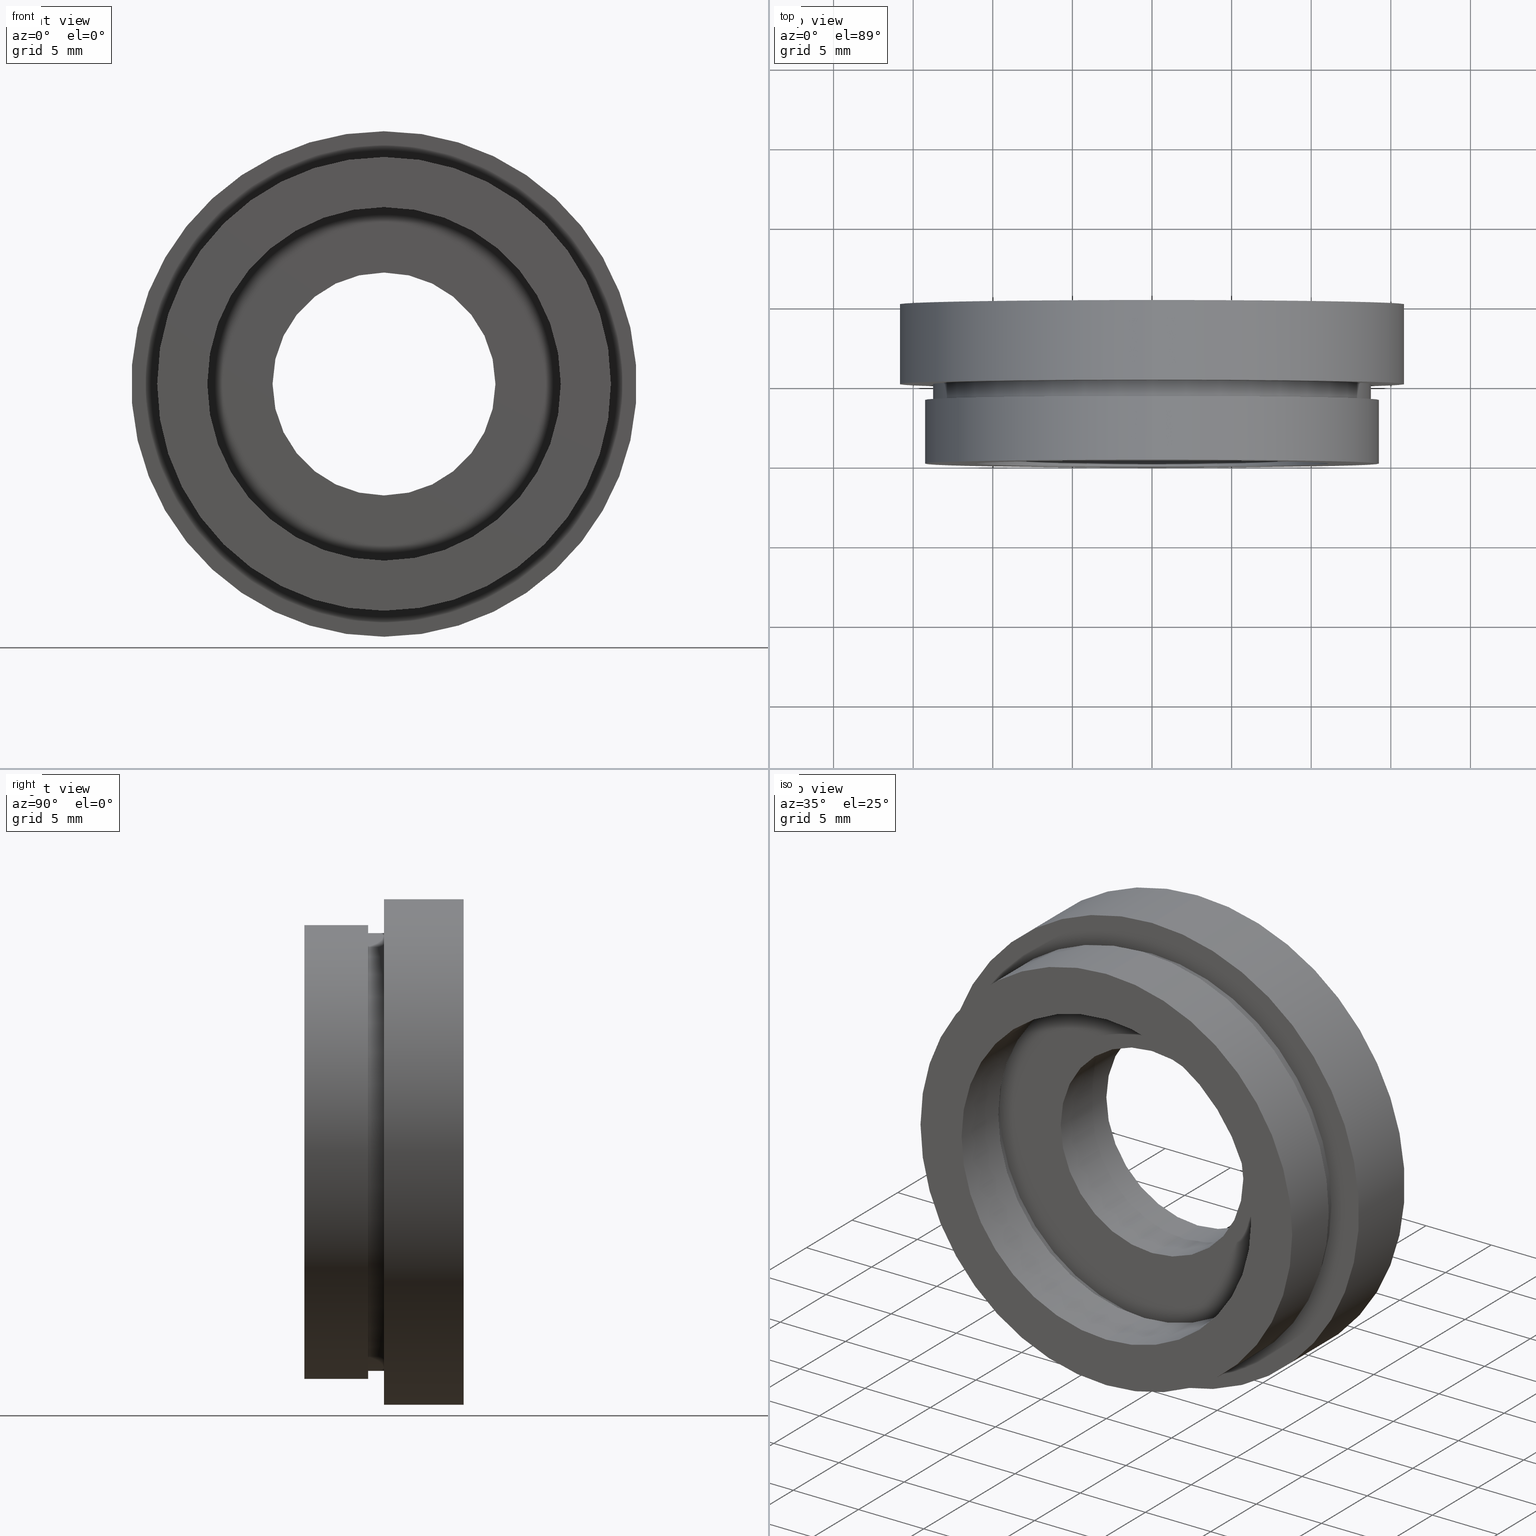
[diagram: canonical four-view strip — front | top / right | iso, engineering-drawing reading convention]
A machine part, canonical four-view strip (front | top / right | iso — engineering-drawing reading convention). The complete STEP part file that produces these views, byte-faithful:
ISO-10303-21;
HEADER;
FILE_DESCRIPTION (( 'STEP AP214' ),
    '1' );
FILE_NAME ('504066.STEP',
    '2019-09-30T03:16:04',
    ( 'user' ),
    ( '΢���й�' ),
    'SwSTEP 2.0',
    'SolidWorks 2016',
    '' );
FILE_SCHEMA (( 'AUTOMOTIVE_DESIGN' ));
ENDSEC;

DATA;
#1 =( NAMED_UNIT ( * ) PLANE_ANGLE_UNIT ( ) SI_UNIT ( $, .RADIAN. ) );
#2 = DIRECTION ( 'NONE',  ( 0.0000000000000000000, 0.0000000000000000000, 1.000000000000000000 ) ) ;
#3 = EDGE_CURVE ( 'NONE', #66, #242, #73, .T. ) ;
#4 = FILL_AREA_STYLE ('',( #424 ) ) ;
#5 = FACE_BOUND ( 'NONE', #399, .T. ) ;
#6 =( NAMED_UNIT ( * ) SI_UNIT ( $, .STERADIAN. ) SOLID_ANGLE_UNIT ( ) );
#7 = CIRCLE ( 'NONE', #325, 11.70000000000000100 ) ;
#8 = ORIENTED_EDGE ( 'NONE', *, *, #110, .F. ) ;
#9 = DIRECTION ( 'NONE',  ( 0.0000000000000000000, -0.0000000000000000000, -1.000000000000000000 ) ) ;
#10 = PLANE ( 'NONE',  #161 ) ;
#11 = LINE ( 'NONE', #107, #154 ) ;
#12 = EDGE_LOOP ( 'NONE', ( #61, #411, #124, #458 ) ) ;
#13 = FACE_OUTER_BOUND ( 'NONE', #374, .T. ) ;
#14 = SURFACE_STYLE_USAGE ( .BOTH. , #199 ) ;
#15 = SURFACE_STYLE_USAGE ( .BOTH. , #536 ) ;
#16 = EDGE_LOOP ( 'NONE', ( #588, #386 ) ) ;
#17 = CARTESIAN_POINT ( 'NONE',  ( 0.0000000000000000000, 0.0000000000000000000, 0.0000000000000000000 ) ) ;
#18 = VERTEX_POINT ( 'NONE', #535 ) ;
#19 = AXIS2_PLACEMENT_3D ( 'NONE', #57, #343, #481 ) ;
#20 = ORIENTED_EDGE ( 'NONE', *, *, #79, .T. ) ;
#21 = FACE_OUTER_BOUND ( 'NONE', #559, .T. ) ;
#22 = CARTESIAN_POINT ( 'NONE',  ( 1.432836755002403300E-015, 17.41929831819392000, -11.70000000000000100 ) ) ;
#23 = FACE_OUTER_BOUND ( 'NONE', #201, .T. ) ;
#24 =( NAMED_UNIT ( * ) PLANE_ANGLE_UNIT ( ) SI_UNIT ( $, .RADIAN. ) );
#25 = AXIS2_PLACEMENT_3D ( 'NONE', #330, #486, #313 ) ;
#26 = SURFACE_STYLE_USAGE ( .BOTH. , #377 ) ;
#27 = DIRECTION ( 'NONE',  ( 0.0000000000000000000, 0.0000000000000000000, 1.000000000000000000 ) ) ;
#28 = DIRECTION ( 'NONE',  ( -0.0000000000000000000, 1.000000000000000000, -0.0000000000000000000 ) ) ;
#29 = ADVANCED_FACE ( 'NONE', ( #23 ), #114, .F. ) ;
#30 = VERTEX_POINT ( 'NONE', #437 ) ;
#31 = FILL_AREA_STYLE_COLOUR ( '', #245 ) ;
#32 =( GEOMETRIC_REPRESENTATION_CONTEXT ( 3 ) GLOBAL_UNCERTAINTY_ASSIGNED_CONTEXT ( ( #75 ) ) GLOBAL_UNIT_ASSIGNED_CONTEXT ( ( #77, #205, #476 ) ) REPRESENTATION_CONTEXT ( 'NONE', 'WORKASPACE' ) );
#33 = CIRCLE ( 'NONE', #337, 11.10000000000000100 ) ;
#34 =( NAMED_UNIT ( * ) SI_UNIT ( $, .STERADIAN. ) SOLID_ANGLE_UNIT ( ) );
#35 = ADVANCED_FACE ( 'NONE', ( #5, #21 ), #119, .F. ) ;
#36 = PRESENTATION_LAYER_ASSIGNMENT (  '', '', ( #121 ) ) ;
#37 = CARTESIAN_POINT ( 'NONE',  ( 11.70000000000000100, 4.999999999999999100, 0.0000000000000000000 ) ) ;
#38 = CARTESIAN_POINT ( 'NONE',  ( 11.10000000000000100, 0.0000000000000000000, 0.0000000000000000000 ) ) ;
#39 = EDGE_CURVE ( 'NONE', #30, #189, #7, .T. ) ;
#40 = DIRECTION ( 'NONE',  ( 0.0000000000000000000, 0.0000000000000000000, 1.000000000000000000 ) ) ;
#41 = DIRECTION ( 'NONE',  ( -0.0000000000000000000, 1.000000000000000000, 0.0000000000000000000 ) ) ;
#42 = CLOSED_SHELL ( 'NONE', ( #171, #29, #601, #554, #176, #495, #87, #223, #35, #389, #132, #85, #344, #449, #222, #267, #304, #259 ) ) ;
#43 = ORIENTED_EDGE ( 'NONE', *, *, #425, .T. ) ;
#44 = EDGE_CURVE ( 'NONE', #581, #563, #112, .T. ) ;
#45 = FACE_OUTER_BOUND ( 'NONE', #569, .T. ) ;
#46 = SURFACE_SIDE_STYLE ('',( #539 ) ) ;
#47 = SURFACE_STYLE_USAGE ( .BOTH. , #146 ) ;
#48 = EDGE_LOOP ( 'NONE', ( #125, #623, #43, #371 ) ) ;
#49 = LINE ( 'NONE', #22, #111 ) ;
#50 = AXIS2_PLACEMENT_3D ( 'NONE', #460, #519, #524 ) ;
#51 = ADVANCED_BREP_SHAPE_REPRESENTATION ( '504066', ( #95, #144 ), #76 ) ;
#52 = COLOUR_RGB ( '',1.000000000000000000, 1.000000000000000000, 1.000000000000000000 ) ;
#53 = FILL_AREA_STYLE_COLOUR ( '', #612 ) ;
#54 = FACE_BOUND ( 'NONE', #16, .T. ) ;
#55 = DIRECTION ( 'NONE',  ( -0.0000000000000000000, 1.000000000000000000, -0.0000000000000000000 ) ) ;
#56 = DIRECTION ( 'NONE',  ( 0.0000000000000000000, 0.0000000000000000000, 1.000000000000000000 ) ) ;
#57 = CARTESIAN_POINT ( 'NONE',  ( 0.0000000000000000000, 17.41929831819392000, 0.0000000000000000000 ) ) ;
#58 =( NAMED_UNIT ( * ) PLANE_ANGLE_UNIT ( ) SI_UNIT ( $, .RADIAN. ) );
#59 = ORIENTED_EDGE ( 'NONE', *, *, #438, .F. ) ;
#60 = ORIENTED_EDGE ( 'NONE', *, *, #361, .T. ) ;
#61 = ORIENTED_EDGE ( 'NONE', *, *, #512, .F. ) ;
#62 = LINE ( 'NONE', #354, #391 ) ;
#63 = AXIS2_PLACEMENT_3D ( 'NONE', #227, #145, #408 ) ;
#64 =( NAMED_UNIT ( * ) SI_UNIT ( $, .STERADIAN. ) SOLID_ANGLE_UNIT ( ) );
#65 = DIRECTION ( 'NONE',  ( -0.0000000000000000000, 1.000000000000000000, -0.0000000000000000000 ) ) ;
#66 = VERTEX_POINT ( 'NONE', #556 ) ;
#67 = LINE ( 'NONE', #529, #402 ) ;
#68 = CARTESIAN_POINT ( 'NONE',  ( 1.683889348827610700E-015, 4.000000000000000000, -13.75000000000000000 ) ) ;
#69 = VERTEX_POINT ( 'NONE', #185 ) ;
#70 = DIRECTION ( 'NONE',  ( 0.0000000000000000000, 0.0000000000000000000, 1.000000000000000000 ) ) ;
#71 = VERTEX_POINT ( 'NONE', #456 ) ;
#72 = FACE_OUTER_BOUND ( 'NONE', #420, .T. ) ;
#73 = CIRCLE ( 'NONE', #463, 15.87500000000000000 ) ;
#74 = CARTESIAN_POINT ( 'NONE',  ( 0.0000000000000000000, 10.00000000000000000, 0.0000000000000000000 ) ) ;
#75 = UNCERTAINTY_MEASURE_WITH_UNIT (LENGTH_MEASURE( 1.000000000000000100E-005 ), #77, 'distance_accuracy_value', 'NONE');
#76 =( GEOMETRIC_REPRESENTATION_CONTEXT ( 3 ) GLOBAL_UNCERTAINTY_ASSIGNED_CONTEXT ( ( #347 ) ) GLOBAL_UNIT_ASSIGNED_CONTEXT ( ( #175, #385, #552 ) ) REPRESENTATION_CONTEXT ( 'NONE', 'WORKASPACE' ) );
#77 =( LENGTH_UNIT ( ) NAMED_UNIT ( * ) SI_UNIT ( .MILLI., .METRE. ) );
#78 = EDGE_CURVE ( 'NONE', #196, #332, #353, .T. ) ;
#79 = EDGE_CURVE ( 'NONE', #611, #620, #485, .T. ) ;
#80 = DIRECTION ( 'NONE',  ( 0.0000000000000000000, 0.0000000000000000000, 1.000000000000000000 ) ) ;
#81 = ORIENTED_EDGE ( 'NONE', *, *, #3, .T. ) ;
#82 =( NAMED_UNIT ( * ) PLANE_ANGLE_UNIT ( ) SI_UNIT ( $, .RADIAN. ) );
#83 = DIRECTION ( 'NONE',  ( -0.0000000000000000000, 1.000000000000000000, 0.0000000000000000000 ) ) ;
#84 = CIRCLE ( 'NONE', #307, 15.87500000000000000 ) ;
#85 = ADVANCED_FACE ( 'NONE', ( #624 ), #504, .T. ) ;
#86 = CARTESIAN_POINT ( 'NONE',  ( 7.000000000000001800, 10.00000000000000000, 0.0000000000000000000 ) ) ;
#87 = ADVANCED_FACE ( 'NONE', ( #13, #54 ), #350, .F. ) ;
#88 = UNCERTAINTY_MEASURE_WITH_UNIT (LENGTH_MEASURE( 1.000000000000000100E-005 ), #410, 'distance_accuracy_value', 'NONE');
#89 = VERTEX_POINT ( 'NONE', #172 ) ;
#90 = FACE_OUTER_BOUND ( 'NONE', #479, .T. ) ;
#91 = CARTESIAN_POINT ( 'NONE',  ( 0.0000000000000000000, 4.000000000000000000, 0.0000000000000000000 ) ) ;
#92 = DIRECTION ( 'NONE',  ( -0.0000000000000000000, 1.000000000000000000, -0.0000000000000000000 ) ) ;
#93 = CARTESIAN_POINT ( 'NONE',  ( 0.0000000000000000000, 17.41929831819392000, 0.0000000000000000000 ) ) ;
#94 = DIRECTION ( 'NONE',  ( -0.0000000000000000000, 1.000000000000000000, -0.0000000000000000000 ) ) ;
#95 = MANIFOLD_SOLID_BREP ( '��ת1', #42 ) ;
#96 = CARTESIAN_POINT ( 'NONE',  ( 0.0000000000000000000, 17.41929831819392000, 0.0000000000000000000 ) ) ;
#97 = ORIENTED_EDGE ( 'NONE', *, *, #361, .F. ) ;
#98 = DIRECTION ( 'NONE',  ( 0.0000000000000000000, 0.0000000000000000000, 1.000000000000000000 ) ) ;
#99 = CYLINDRICAL_SURFACE ( 'NONE', #500, 7.000000000000001800 ) ;
#100 = DIRECTION ( 'NONE',  ( -0.0000000000000000000, 1.000000000000000000, -0.0000000000000000000 ) ) ;
#101 = DIRECTION ( 'NONE',  ( 0.0000000000000000000, 0.0000000000000000000, 1.000000000000000000 ) ) ;
#102 = DIRECTION ( 'NONE',  ( -0.0000000000000000000, 1.000000000000000000, -0.0000000000000000000 ) ) ;
#103 = ORIENTED_EDGE ( 'NONE', *, *, #520, .F. ) ;
#104 = DIRECTION ( 'NONE',  ( 0.0000000000000000000, 0.0000000000000000000, 1.000000000000000000 ) ) ;
#105 = ORIENTED_EDGE ( 'NONE', *, *, #78, .F. ) ;
#106 = EDGE_LOOP ( 'NONE', ( #254, #493, #255, #308 ) ) ;
#107 = CARTESIAN_POINT ( 'NONE',  ( 1.683889348827610700E-015, 17.41929831819392000, -13.75000000000000000 ) ) ;
#108 =( GEOMETRIC_REPRESENTATION_CONTEXT ( 3 ) GLOBAL_UNCERTAINTY_ASSIGNED_CONTEXT ( ( #179 ) ) GLOBAL_UNIT_ASSIGNED_CONTEXT ( ( #517, #58, #34 ) ) REPRESENTATION_CONTEXT ( 'NONE', 'WORKASPACE' ) );
#109 = DIRECTION ( 'NONE',  ( 0.0000000000000000000, 0.0000000000000000000, 1.000000000000000000 ) ) ;
#110 = EDGE_CURVE ( 'NONE', #189, #30, #142, .T. ) ;
#111 = VECTOR ( 'NONE', #446, 1000.000000000000000 ) ;
#112 = CIRCLE ( 'NONE', #63, 14.25000000000000400 ) ;
#113 = CIRCLE ( 'NONE', #502, 7.000000000000001800 ) ;
#114 = CYLINDRICAL_SURFACE ( 'NONE', #610, 11.70000000000000100 ) ;
#115 = PLANE ( 'NONE',  #487 ) ;
#116 = STYLED_ITEM ( 'NONE', ( #474 ), #449 ) ;
#117 = APPLICATION_CONTEXT ( 'automotive_design' ) ;
#118 = ORIENTED_EDGE ( 'NONE', *, *, #425, .F. ) ;
#119 = PLANE ( 'NONE',  #295 ) ;
#120 = CYLINDRICAL_SURFACE ( 'NONE', #198, 13.75000000000000000 ) ;
#121 = STYLED_ITEM ( 'NONE', ( #333 ), #171 ) ;
#122 = PRODUCT ( '504066', '504066', '', ( #156 ) ) ;
#123 = DIRECTION ( 'NONE',  ( -0.0000000000000000000, 1.000000000000000000, -0.0000000000000000000 ) ) ;
#124 = ORIENTED_EDGE ( 'NONE', *, *, #532, .T. ) ;
#125 = ORIENTED_EDGE ( 'NONE', *, *, #249, .F. ) ;
#126 = SURFACE_STYLE_FILL_AREA ( #423 ) ;
#127 = LINE ( 'NONE', #596, #403 ) ;
#128 = EDGE_CURVE ( 'NONE', #469, #360, #33, .T. ) ;
#129 =( NAMED_UNIT ( * ) SI_UNIT ( $, .STERADIAN. ) SOLID_ANGLE_UNIT ( ) );
#130 = ORIENTED_EDGE ( 'NONE', *, *, #395, .T. ) ;
#131 = DIRECTION ( 'NONE',  ( 0.0000000000000000000, 0.0000000000000000000, 1.000000000000000000 ) ) ;
#132 = ADVANCED_FACE ( 'NONE', ( #303, #352 ), #609, .F. ) ;
#133 = EDGE_LOOP ( 'NONE', ( #483, #186 ) ) ;
#134 = CARTESIAN_POINT ( 'NONE',  ( 1.745121688784978600E-015, 0.0000000000000000000, -14.25000000000000400 ) ) ;
#135 = VERTEX_POINT ( 'NONE', #268 ) ;
#136 = FACE_BOUND ( 'NONE', #211, .T. ) ;
#137 =( NAMED_UNIT ( * ) SI_UNIT ( $, .STERADIAN. ) SOLID_ANGLE_UNIT ( ) );
#138 = AXIS2_PLACEMENT_3D ( 'NONE', #93, #404, #501 ) ;
#139 = CARTESIAN_POINT ( 'NONE',  ( 0.0000000000000000000, 4.000000000000000000, 14.25000000000000400 ) ) ;
#140 = CARTESIAN_POINT ( 'NONE',  ( 0.0000000000000000000, 17.41929831819392000, 0.0000000000000000000 ) ) ;
#141 = AXIS2_PLACEMENT_3D ( 'NONE', #432, #407, #98 ) ;
#142 = CIRCLE ( 'NONE', #401, 11.70000000000000100 ) ;
#143 =( NAMED_UNIT ( * ) PLANE_ANGLE_UNIT ( ) SI_UNIT ( $, .RADIAN. ) );
#144 = AXIS2_PLACEMENT_3D ( 'NONE', #17, #101, #174 ) ;
#145 = DIRECTION ( 'NONE',  ( -0.0000000000000000000, 1.000000000000000000, -0.0000000000000000000 ) ) ;
#146 = SURFACE_SIDE_STYLE ('',( #340 ) ) ;
#147 = CARTESIAN_POINT ( 'NONE',  ( 0.0000000000000000000, 5.000000000000000900, 0.0000000000000000000 ) ) ;
#148 = MECHANICAL_DESIGN_GEOMETRIC_PRESENTATION_REPRESENTATION (  '', ( #299 ), #480 ) ;
#149 = ORIENTED_EDGE ( 'NONE', *, *, #203, .F. ) ;
#150 = PRODUCT_DEFINITION_CONTEXT ( 'detailed design', #527, 'design' ) ;
#151 = DIRECTION ( 'NONE',  ( 0.0000000000000000000, 0.0000000000000000000, 1.000000000000000000 ) ) ;
#152 = FACE_OUTER_BOUND ( 'NONE', #133, .T. ) ;
#153 = ORIENTED_EDGE ( 'NONE', *, *, #258, .T. ) ;
#154 = VECTOR ( 'NONE', #94, 1000.000000000000000 ) ;
#155 = ORIENTED_EDGE ( 'NONE', *, *, #490, .T. ) ;
#156 = PRODUCT_CONTEXT ( 'NONE', #117, 'mechanical' ) ;
#157 = ORIENTED_EDGE ( 'NONE', *, *, #543, .F. ) ;
#158 = DIRECTION ( 'NONE',  ( 0.0000000000000000000, -0.0000000000000000000, -1.000000000000000000 ) ) ;
#159 = EDGE_CURVE ( 'NONE', #469, #491, #452, .T. ) ;
#160 = PRESENTATION_STYLE_ASSIGNMENT (( #15 ) ) ;
#161 = AXIS2_PLACEMENT_3D ( 'NONE', #293, #202, #158 ) ;
#162 = AXIS2_PLACEMENT_3D ( 'NONE', #96, #615, #232 ) ;
#163 =( GEOMETRIC_REPRESENTATION_CONTEXT ( 3 ) GLOBAL_UNCERTAINTY_ASSIGNED_CONTEXT ( ( #506 ) ) GLOBAL_UNIT_ASSIGNED_CONTEXT ( ( #215, #331, #528 ) ) REPRESENTATION_CONTEXT ( 'NONE', 'WORKASPACE' ) );
#164 = SURFACE_STYLE_FILL_AREA ( #579 ) ;
#165 = PRODUCT_DEFINITION ( 'δ֪', '', #577, #150 ) ;
#166 = CARTESIAN_POINT ( 'NONE',  ( 0.0000000000000000000, 10.00000000000000000, 0.0000000000000000000 ) ) ;
#167 = EDGE_LOOP ( 'NONE', ( #177, #558, #426, #421 ) ) ;
#168 = LINE ( 'NONE', #339, #560 ) ;
#169 = VECTOR ( 'NONE', #382, 1000.000000000000000 ) ;
#170 = FACE_OUTER_BOUND ( 'NONE', #106, .T. ) ;
#171 = ADVANCED_FACE ( 'NONE', ( #45 ), #515, .F. ) ;
#172 = CARTESIAN_POINT ( 'NONE',  ( 0.0000000000000000000, 5.000000000000000900, 15.87500000000000000 ) ) ;
#173 = CARTESIAN_POINT ( 'NONE',  ( 0.0000000000000000000, 4.000000000000000000, 0.0000000000000000000 ) ) ;
#174 = DIRECTION ( 'NONE',  ( 1.000000000000000000, 0.0000000000000000000, 0.0000000000000000000 ) ) ;
#175 =( LENGTH_UNIT ( ) NAMED_UNIT ( * ) SI_UNIT ( .MILLI., .METRE. ) );
#176 = ADVANCED_FACE ( 'NONE', ( #170 ), #120, .T. ) ;
#177 = ORIENTED_EDGE ( 'NONE', *, *, #239, .T. ) ;
#178 = ORIENTED_EDGE ( 'NONE', *, *, #564, .T. ) ;
#179 = UNCERTAINTY_MEASURE_WITH_UNIT (LENGTH_MEASURE( 1.000000000000000100E-005 ), #517, 'distance_accuracy_value', 'NONE');
#180 = CARTESIAN_POINT ( 'NONE',  ( 1.432836755002403300E-015, 5.000000000000000900, -11.70000000000000100 ) ) ;
#181 = FACE_OUTER_BOUND ( 'NONE', #187, .T. ) ;
#182 = SURFACE_STYLE_FILL_AREA ( #200 ) ;
#183 = APPLICATION_PROTOCOL_DEFINITION ( 'draft international standard', 'automotive_design', 1998, #527 ) ;
#184 = DIRECTION ( 'NONE',  ( 0.0000000000000000000, 0.0000000000000000000, 1.000000000000000000 ) ) ;
#185 = CARTESIAN_POINT ( 'NONE',  ( 0.0000000000000000000, 5.000000000000000900, 11.70000000000000100 ) ) ;
#186 = ORIENTED_EDGE ( 'NONE', *, *, #417, .F. ) ;
#187 = EDGE_LOOP ( 'NONE', ( #478, #246, #372, #60 ) ) ;
#188 = ORIENTED_EDGE ( 'NONE', *, *, #417, .T. ) ;
#189 = VERTEX_POINT ( 'NONE', #261 ) ;
#190 =( LENGTH_UNIT ( ) NAMED_UNIT ( * ) SI_UNIT ( .MILLI., .METRE. ) );
#191 = DIRECTION ( 'NONE',  ( -0.0000000000000000000, 1.000000000000000000, -0.0000000000000000000 ) ) ;
#192 = DIRECTION ( 'NONE',  ( 0.0000000000000000000, 0.0000000000000000000, 1.000000000000000000 ) ) ;
#193 = CARTESIAN_POINT ( 'NONE',  ( 0.0000000000000000000, 17.41929831819392000, 0.0000000000000000000 ) ) ;
#194 = DIRECTION ( 'NONE',  ( -0.0000000000000000000, 1.000000000000000000, -0.0000000000000000000 ) ) ;
#195 = EDGE_LOOP ( 'NONE', ( #59, #301 ) ) ;
#196 = VERTEX_POINT ( 'NONE', #383 ) ;
#197 = ORIENTED_EDGE ( 'NONE', *, *, #520, .T. ) ;
#198 = AXIS2_PLACEMENT_3D ( 'NONE', #363, #221, #442 ) ;
#199 = SURFACE_SIDE_STYLE ('',( #164 ) ) ;
#200 = FILL_AREA_STYLE ('',( #53 ) ) ;
#201 = EDGE_LOOP ( 'NONE', ( #322, #455, #188, #103 ) ) ;
#202 = DIRECTION ( 'NONE',  ( 0.0000000000000000000, -1.000000000000000000, 0.0000000000000000000 ) ) ;
#203 = EDGE_CURVE ( 'NONE', #332, #468, #11, .T. ) ;
#204 = CIRCLE ( 'NONE', #270, 11.70000000000000100 ) ;
#205 =( NAMED_UNIT ( * ) PLANE_ANGLE_UNIT ( ) SI_UNIT ( $, .RADIAN. ) );
#206 =( NAMED_UNIT ( * ) PLANE_ANGLE_UNIT ( ) SI_UNIT ( $, .RADIAN. ) );
#207 = MECHANICAL_DESIGN_GEOMETRIC_PRESENTATION_REPRESENTATION (  '', ( #116 ), #436 ) ;
#208 = DIRECTION ( 'NONE',  ( 0.0000000000000000000, 0.0000000000000000000, 1.000000000000000000 ) ) ;
#209 = FILL_AREA_STYLE ('',( #214 ) ) ;
#210 = DIRECTION ( 'NONE',  ( -0.0000000000000000000, 1.000000000000000000, -0.0000000000000000000 ) ) ;
#211 = EDGE_LOOP ( 'NONE', ( #265, #262 ) ) ;
#212 = AXIS2_PLACEMENT_3D ( 'NONE', #147, #92, #413 ) ;
#213 = APPLICATION_PROTOCOL_DEFINITION ( 'draft international standard', 'automotive_design', 1998, #117 ) ;
#214 = FILL_AREA_STYLE_COLOUR ( '', #470 ) ;
#215 =( LENGTH_UNIT ( ) NAMED_UNIT ( * ) SI_UNIT ( .MILLI., .METRE. ) );
#216 = ORIENTED_EDGE ( 'NONE', *, *, #279, .F. ) ;
#217 = CIRCLE ( 'NONE', #356, 11.10000000000000100 ) ;
#218 = AXIS2_PLACEMENT_3D ( 'NONE', #298, #65, #27 ) ;
#219 = FACE_OUTER_BOUND ( 'NONE', #167, .T. ) ;
#220 = CARTESIAN_POINT ( 'NONE',  ( 0.0000000000000000000, 0.0000000000000000000, 14.25000000000000400 ) ) ;
#221 = DIRECTION ( 'NONE',  ( -0.0000000000000000000, 1.000000000000000000, -0.0000000000000000000 ) ) ;
#222 = ADVANCED_FACE ( 'NONE', ( #152, #496 ), #256, .F. ) ;
#223 = ADVANCED_FACE ( 'NONE', ( #278 ), #422, .T. ) ;
#224 = DIRECTION ( 'NONE',  ( 0.0000000000000000000, 0.0000000000000000000, 1.000000000000000000 ) ) ;
#225 = AXIS2_PLACEMENT_3D ( 'NONE', #277, #306, #618 ) ;
#226 = VERTEX_POINT ( 'NONE', #342 ) ;
#227 = CARTESIAN_POINT ( 'NONE',  ( 0.0000000000000000000, 0.0000000000000000000, 0.0000000000000000000 ) ) ;
#228 = AXIS2_PLACEMENT_3D ( 'NONE', #273, #312, #561 ) ;
#229 = DIRECTION ( 'NONE',  ( 0.0000000000000000000, 0.0000000000000000000, 1.000000000000000000 ) ) ;
#230 = AXIS2_PLACEMENT_3D ( 'NONE', #269, #464, #80 ) ;
#231 = EDGE_CURVE ( 'NONE', #226, #468, #614, .T. ) ;
#232 = DIRECTION ( 'NONE',  ( 0.0000000000000000000, 0.0000000000000000000, 1.000000000000000000 ) ) ;
#233 = ORIENTED_EDGE ( 'NONE', *, *, #128, .F. ) ;
#234 = DIRECTION ( 'NONE',  ( -0.0000000000000000000, 1.000000000000000000, -0.0000000000000000000 ) ) ;
#235 = CYLINDRICAL_SURFACE ( 'NONE', #50, 11.70000000000000100 ) ;
#236 = EDGE_CURVE ( 'NONE', #69, #473, #553, .T. ) ;
#237 = DIRECTION ( 'NONE',  ( -0.0000000000000000000, 1.000000000000000000, -0.0000000000000000000 ) ) ;
#238 = CARTESIAN_POINT ( 'NONE',  ( 0.0000000000000000000, 10.00000000000000000, 0.0000000000000000000 ) ) ;
#239 = EDGE_CURVE ( 'NONE', #563, #581, #540, .T. ) ;
#240 = SURFACE_STYLE_USAGE ( .BOTH. , #621 ) ;
#241 = EDGE_CURVE ( 'NONE', #491, #289, #217, .T. ) ;
#242 = VERTEX_POINT ( 'NONE', #440 ) ;
#243 = VECTOR ( 'NONE', #260, 1000.000000000000000 ) ;
#244 = DIRECTION ( 'NONE',  ( -0.0000000000000000000, 1.000000000000000000, 0.0000000000000000000 ) ) ;
#245 = COLOUR_RGB ( '',1.000000000000000000, 1.000000000000000000, 1.000000000000000000 ) ;
#246 = ORIENTED_EDGE ( 'NONE', *, *, #79, .F. ) ;
#247 = CARTESIAN_POINT ( 'NONE',  ( 0.0000000000000000000, 0.0000000000000000000, 11.10000000000000100 ) ) ;
#248 = FILL_AREA_STYLE_COLOUR ( '', #329 ) ;
#249 = EDGE_CURVE ( 'NONE', #18, #242, #127, .T. ) ;
#250 = ORIENTED_EDGE ( 'NONE', *, *, #231, .T. ) ;
#251 = ORIENTED_EDGE ( 'NONE', *, *, #39, .T. ) ;
#252 = PRESENTATION_STYLE_ASSIGNMENT (( #14 ) ) ;
#253 = CARTESIAN_POINT ( 'NONE',  ( 0.0000000000000000000, 17.41929831819392000, 0.0000000000000000000 ) ) ;
#254 = ORIENTED_EDGE ( 'NONE', *, *, #78, .T. ) ;
#255 = ORIENTED_EDGE ( 'NONE', *, *, #231, .F. ) ;
#256 = PLANE ( 'NONE',  #603 ) ;
#257 = STYLED_ITEM ( 'NONE', ( #160 ), #223 ) ;
#258 = EDGE_CURVE ( 'NONE', #289, #491, #296, .T. ) ;
#259 = ADVANCED_FACE ( 'NONE', ( #72 ), #316, .F. ) ;
#260 = DIRECTION ( 'NONE',  ( -0.0000000000000000000, 1.000000000000000000, -0.0000000000000000000 ) ) ;
#261 = CARTESIAN_POINT ( 'NONE',  ( 0.0000000000000000000, 4.000000000000000000, 11.70000000000000100 ) ) ;
#262 = ORIENTED_EDGE ( 'NONE', *, *, #241, .F. ) ;
#263 = AXIS2_PLACEMENT_3D ( 'NONE', #238, #507, #565 ) ;
#264 = ORIENTED_EDGE ( 'NONE', *, *, #249, .T. ) ;
#265 = ORIENTED_EDGE ( 'NONE', *, *, #258, .F. ) ;
#266 = PRESENTATION_STYLE_ASSIGNMENT (( #240 ) ) ;
#267 = ADVANCED_FACE ( 'NONE', ( #445 ), #235, .F. ) ;
#268 = CARTESIAN_POINT ( 'NONE',  ( 0.0000000000000000000, 10.00000000000000000, 7.000000000000001800 ) ) ;
#269 = CARTESIAN_POINT ( 'NONE',  ( 0.0000000000000000000, 17.41929831819392000, 0.0000000000000000000 ) ) ;
#270 = AXIS2_PLACEMENT_3D ( 'NONE', #362, #369, #358 ) ;
#271 = FACE_OUTER_BOUND ( 'NONE', #418, .T. ) ;
#272 = CARTESIAN_POINT ( 'NONE',  ( 8.572527594031474200E-016, 4.999999999999999100, -7.000000000000001800 ) ) ;
#273 = CARTESIAN_POINT ( 'NONE',  ( 0.0000000000000000000, 4.000000000000000000, 0.0000000000000000000 ) ) ;
#274 = FILL_AREA_STYLE_COLOUR ( '', #287 ) ;
#275 = DIRECTION ( 'NONE',  ( 0.0000000000000000000, -1.000000000000000000, 0.0000000000000000000 ) ) ;
#276 = ORIENTED_EDGE ( 'NONE', *, *, #605, .T. ) ;
#277 = CARTESIAN_POINT ( 'NONE',  ( 0.0000000000000000000, 17.41929831819392000, 0.0000000000000000000 ) ) ;
#278 = FACE_OUTER_BOUND ( 'NONE', #12, .T. ) ;
#279 = EDGE_CURVE ( 'NONE', #611, #135, #348, .T. ) ;
#280 = CARTESIAN_POINT ( 'NONE',  ( 1.359357947053562400E-015, 0.0000000000000000000, -11.10000000000000100 ) ) ;
#281 =( NAMED_UNIT ( * ) SI_UNIT ( $, .STERADIAN. ) SOLID_ANGLE_UNIT ( ) );
#282 =( GEOMETRIC_REPRESENTATION_CONTEXT ( 3 ) GLOBAL_UNCERTAINTY_ASSIGNED_CONTEXT ( ( #88 ) ) GLOBAL_UNIT_ASSIGNED_CONTEXT ( ( #410, #143, #6 ) ) REPRESENTATION_CONTEXT ( 'NONE', 'WORKASPACE' ) );
#283 = CARTESIAN_POINT ( 'NONE',  ( 0.0000000000000000000, 4.000000000000000000, 0.0000000000000000000 ) ) ;
#284 = STYLED_ITEM ( 'NONE', ( #526 ), #95 ) ;
#285 = EDGE_LOOP ( 'NONE', ( #286, #276, #130, #216 ) ) ;
#286 = ORIENTED_EDGE ( 'NONE', *, *, #589, .F. ) ;
#287 = COLOUR_RGB ( '',1.000000000000000000, 1.000000000000000000, 1.000000000000000000 ) ;
#288 = CARTESIAN_POINT ( 'NONE',  ( 1.683889348827610700E-015, 5.000000000000000900, -13.75000000000000000 ) ) ;
#289 = VERTEX_POINT ( 'NONE', #416 ) ;
#290 = ORIENTED_EDGE ( 'NONE', *, *, #592, .T. ) ;
#291 = LINE ( 'NONE', #431, #328 ) ;
#292 = DIRECTION ( 'NONE',  ( -0.0000000000000000000, 1.000000000000000000, -0.0000000000000000000 ) ) ;
#293 = CARTESIAN_POINT ( 'NONE',  ( 11.10000000000000100, 4.000000000000000000, 0.0000000000000000000 ) ) ;
#294 = UNCERTAINTY_MEASURE_WITH_UNIT (LENGTH_MEASURE( 1.000000000000000100E-005 ), #190, 'distance_accuracy_value', 'NONE');
#295 = AXIS2_PLACEMENT_3D ( 'NONE', #444, #275, #9 ) ;
#296 = CIRCLE ( 'NONE', #461, 11.10000000000000100 ) ;
#297 = CARTESIAN_POINT ( 'NONE',  ( 0.0000000000000000000, 0.0000000000000000000, 0.0000000000000000000 ) ) ;
#298 = CARTESIAN_POINT ( 'NONE',  ( 0.0000000000000000000, 10.00000000000000000, 0.0000000000000000000 ) ) ;
#299 = STYLED_ITEM ( 'NONE', ( #435 ), #259 ) ;
#300 = EDGE_LOOP ( 'NONE', ( #97, #434 ) ) ;
#301 = ORIENTED_EDGE ( 'NONE', *, *, #324, .F. ) ;
#302 =( GEOMETRIC_REPRESENTATION_CONTEXT ( 3 ) GLOBAL_UNCERTAINTY_ASSIGNED_CONTEXT ( ( #467 ) ) GLOBAL_UNIT_ASSIGNED_CONTEXT ( ( #521, #82, #137 ) ) REPRESENTATION_CONTEXT ( 'NONE', 'WORKASPACE' ) );
#303 = FACE_OUTER_BOUND ( 'NONE', #195, .T. ) ;
#304 = ADVANCED_FACE ( 'NONE', ( #136, #336 ), #10, .F. ) ;
#305 = DIRECTION ( 'NONE',  ( 0.0000000000000000000, 0.0000000000000000000, 1.000000000000000000 ) ) ;
#306 = DIRECTION ( 'NONE',  ( -0.0000000000000000000, 1.000000000000000000, -0.0000000000000000000 ) ) ;
#307 = AXIS2_PLACEMENT_3D ( 'NONE', #459, #237, #572 ) ;
#308 = ORIENTED_EDGE ( 'NONE', *, *, #490, .F. ) ;
#309 = CIRCLE ( 'NONE', #25, 14.25000000000000400 ) ;
#310 = CARTESIAN_POINT ( 'NONE',  ( 0.0000000000000000000, 4.999999999999999100, 0.0000000000000000000 ) ) ;
#311 = AXIS2_PLACEMENT_3D ( 'NONE', #310, #608, #208 ) ;
#312 = DIRECTION ( 'NONE',  ( -0.0000000000000000000, 1.000000000000000000, -0.0000000000000000000 ) ) ;
#313 = DIRECTION ( 'NONE',  ( 0.0000000000000000000, 0.0000000000000000000, 1.000000000000000000 ) ) ;
#314 = PRESENTATION_STYLE_ASSIGNMENT (( #47 ) ) ;
#315 = CIRCLE ( 'NONE', #364, 15.87500000000000000 ) ;
#316 = CYLINDRICAL_SURFACE ( 'NONE', #19, 11.10000000000000100 ) ;
#317 = DIRECTION ( 'NONE',  ( -0.0000000000000000000, 1.000000000000000000, -0.0000000000000000000 ) ) ;
#318 = CARTESIAN_POINT ( 'NONE',  ( 0.0000000000000000000, 17.41929831819392000, 13.75000000000000000 ) ) ;
#319 = DIRECTION ( 'NONE',  ( -0.0000000000000000000, 1.000000000000000000, -0.0000000000000000000 ) ) ;
#320 = CARTESIAN_POINT ( 'NONE',  ( 0.0000000000000000000, 4.000000000000000000, 0.0000000000000000000 ) ) ;
#321 = AXIS2_PLACEMENT_3D ( 'NONE', #320, #326, #131 ) ;
#322 = ORIENTED_EDGE ( 'NONE', *, *, #39, .F. ) ;
#323 = VECTOR ( 'NONE', #28, 1000.000000000000000 ) ;
#324 = EDGE_CURVE ( 'NONE', #18, #89, #84, .T. ) ;
#325 = AXIS2_PLACEMENT_3D ( 'NONE', #349, #234, #509 ) ;
#326 = DIRECTION ( 'NONE',  ( -0.0000000000000000000, 1.000000000000000000, -0.0000000000000000000 ) ) ;
#327 = ORIENTED_EDGE ( 'NONE', *, *, #236, .T. ) ;
#328 = VECTOR ( 'NONE', #123, 1000.000000000000000 ) ;
#329 = COLOUR_RGB ( '',1.000000000000000000, 1.000000000000000000, 1.000000000000000000 ) ;
#330 = CARTESIAN_POINT ( 'NONE',  ( 0.0000000000000000000, 4.000000000000000000, 0.0000000000000000000 ) ) ;
#331 =( NAMED_UNIT ( * ) PLANE_ANGLE_UNIT ( ) SI_UNIT ( $, .RADIAN. ) );
#332 = VERTEX_POINT ( 'NONE', #68 ) ;
#333 = PRESENTATION_STYLE_ASSIGNMENT (( #622 ) ) ;
#334 = ORIENTED_EDGE ( 'NONE', *, *, #159, .T. ) ;
#335 = SURFACE_STYLE_FILL_AREA ( #209 ) ;
#336 = FACE_OUTER_BOUND ( 'NONE', #379, .T. ) ;
#337 = AXIS2_PLACEMENT_3D ( 'NONE', #587, #575, #400 ) ;
#338 = MECHANICAL_DESIGN_GEOMETRIC_PRESENTATION_REPRESENTATION (  '', ( #257 ), #598 ) ;
#339 = CARTESIAN_POINT ( 'NONE',  ( 1.745121688784978600E-015, 17.41929831819392000, -14.25000000000000400 ) ) ;
#340 = SURFACE_STYLE_FILL_AREA ( #462 ) ;
#341 =( LENGTH_UNIT ( ) NAMED_UNIT ( * ) SI_UNIT ( .MILLI., .METRE. ) );
#342 = CARTESIAN_POINT ( 'NONE',  ( 0.0000000000000000000, 5.000000000000000900, 13.75000000000000000 ) ) ;
#343 = DIRECTION ( 'NONE',  ( -0.0000000000000000000, 1.000000000000000000, -0.0000000000000000000 ) ) ;
#344 = ADVANCED_FACE ( 'NONE', ( #607, #271 ), #115, .F. ) ;
#345 = DIRECTION ( 'NONE',  ( -0.0000000000000000000, 1.000000000000000000, -0.0000000000000000000 ) ) ;
#346 = CARTESIAN_POINT ( 'NONE',  ( 0.0000000000000000000, 0.0000000000000000000, 0.0000000000000000000 ) ) ;
#347 = UNCERTAINTY_MEASURE_WITH_UNIT (LENGTH_MEASURE( 1.000000000000000100E-005 ), #175, 'distance_accuracy_value', 'NONE');
#348 = LINE ( 'NONE', #484, #243 ) ;
#349 = CARTESIAN_POINT ( 'NONE',  ( 0.0000000000000000000, 4.000000000000000000, 0.0000000000000000000 ) ) ;
#350 = PLANE ( 'NONE',  #381 ) ;
#351 = CIRCLE ( 'NONE', #321, 13.75000000000000000 ) ;
#352 = FACE_BOUND ( 'NONE', #482, .T. ) ;
#353 = CIRCLE ( 'NONE', #228, 13.75000000000000000 ) ;
#354 = CARTESIAN_POINT ( 'NONE',  ( 8.572527594031474200E-016, 17.41929831819392000, -7.000000000000001800 ) ) ;
#355 = SURFACE_STYLE_USAGE ( .BOTH. , #46 ) ;
#356 = AXIS2_PLACEMENT_3D ( 'NONE', #173, #447, #104 ) ;
#357 = DIRECTION ( 'NONE',  ( -0.0000000000000000000, 1.000000000000000000, -0.0000000000000000000 ) ) ;
#358 = DIRECTION ( 'NONE',  ( 0.0000000000000000000, 0.0000000000000000000, 1.000000000000000000 ) ) ;
#359 = AXIS2_PLACEMENT_3D ( 'NONE', #606, #83, #2 ) ;
#360 = VERTEX_POINT ( 'NONE', #247 ) ;
#361 = EDGE_CURVE ( 'NONE', #135, #578, #113, .T. ) ;
#362 = CARTESIAN_POINT ( 'NONE',  ( 0.0000000000000000000, 5.000000000000000900, 0.0000000000000000000 ) ) ;
#363 = CARTESIAN_POINT ( 'NONE',  ( 0.0000000000000000000, 17.41929831819392000, 0.0000000000000000000 ) ) ;
#364 = AXIS2_PLACEMENT_3D ( 'NONE', #375, #538, #184 ) ;
#365 = ORIENTED_EDGE ( 'NONE', *, *, #376, .F. ) ;
#366 = COLOUR_RGB ( '',1.000000000000000000, 1.000000000000000000, 1.000000000000000000 ) ;
#367 = PRESENTATION_LAYER_ASSIGNMENT (  '', '', ( #409 ) ) ;
#368 =( LENGTH_UNIT ( ) NAMED_UNIT ( * ) SI_UNIT ( .MILLI., .METRE. ) );
#369 = DIRECTION ( 'NONE',  ( -0.0000000000000000000, 1.000000000000000000, -0.0000000000000000000 ) ) ;
#370 = DIRECTION ( 'NONE',  ( -0.0000000000000000000, 1.000000000000000000, -0.0000000000000000000 ) ) ;
#371 = ORIENTED_EDGE ( 'NONE', *, *, #557, .F. ) ;
#372 = ORIENTED_EDGE ( 'NONE', *, *, #279, .T. ) ;
#373 = ORIENTED_EDGE ( 'NONE', *, *, #557, .T. ) ;
#374 = EDGE_LOOP ( 'NONE', ( #523, #580 ) ) ;
#375 = CARTESIAN_POINT ( 'NONE',  ( 0.0000000000000000000, 5.000000000000000900, 0.0000000000000000000 ) ) ;
#376 = EDGE_CURVE ( 'NONE', #360, #289, #508, .T. ) ;
#377 = SURFACE_SIDE_STYLE ('',( #335 ) ) ;
#378 = VERTEX_POINT ( 'NONE', #139 ) ;
#379 = EDGE_LOOP ( 'NONE', ( #549, #251 ) ) ;
#380 = SHAPE_DEFINITION_REPRESENTATION ( #477, #51 ) ;
#381 = AXIS2_PLACEMENT_3D ( 'NONE', #38, #41, #548 ) ;
#382 = DIRECTION ( 'NONE',  ( -0.0000000000000000000, 1.000000000000000000, -0.0000000000000000000 ) ) ;
#383 = CARTESIAN_POINT ( 'NONE',  ( 0.0000000000000000000, 4.000000000000000000, 13.75000000000000000 ) ) ;
#384 = FILL_AREA_STYLE_COLOUR ( '', #52 ) ;
#385 =( NAMED_UNIT ( * ) PLANE_ANGLE_UNIT ( ) SI_UNIT ( $, .RADIAN. ) );
#386 = ORIENTED_EDGE ( 'NONE', *, *, #128, .T. ) ;
#387 = CARTESIAN_POINT ( 'NONE',  ( 0.0000000000000000000, 4.000000000000000000, 0.0000000000000000000 ) ) ;
#388 = EDGE_CURVE ( 'NONE', #378, #71, #582, .T. ) ;
#389 = ADVANCED_FACE ( 'NONE', ( #90 ), #453, .T. ) ;
#390 = FACE_OUTER_BOUND ( 'NONE', #285, .T. ) ;
#391 = VECTOR ( 'NONE', #210, 1000.000000000000000 ) ;
#392 = UNCERTAINTY_MEASURE_WITH_UNIT (LENGTH_MEASURE( 1.000000000000000100E-005 ), #341, 'distance_accuracy_value', 'NONE');
#393 = FILL_AREA_STYLE_COLOUR ( '', #542 ) ;
#394 = DIRECTION ( 'NONE',  ( 0.0000000000000000000, 0.0000000000000000000, 1.000000000000000000 ) ) ;
#395 = EDGE_CURVE ( 'NONE', #578, #135, #414, .T. ) ;
#396 = CARTESIAN_POINT ( 'NONE',  ( 1.359357947053562400E-015, 17.41929831819392000, -11.10000000000000100 ) ) ;
#397 = PRESENTATION_LAYER_ASSIGNMENT (  '', '', ( #116 ) ) ;
#398 = ORIENTED_EDGE ( 'NONE', *, *, #592, .F. ) ;
#399 = EDGE_LOOP ( 'NONE', ( #105, #398 ) ) ;
#400 = DIRECTION ( 'NONE',  ( 0.0000000000000000000, 0.0000000000000000000, 1.000000000000000000 ) ) ;
#401 = AXIS2_PLACEMENT_3D ( 'NONE', #387, #370, #574 ) ;
#402 = VECTOR ( 'NONE', #102, 1000.000000000000000 ) ;
#403 = VECTOR ( 'NONE', #499, 1000.000000000000000 ) ;
#404 = DIRECTION ( 'NONE',  ( -0.0000000000000000000, 1.000000000000000000, -0.0000000000000000000 ) ) ;
#405 = CARTESIAN_POINT ( 'NONE',  ( 8.572527594031474200E-016, 10.00000000000000000, -7.000000000000001800 ) ) ;
#406 = AXIS2_PLACEMENT_3D ( 'NONE', #253, #471, #594 ) ;
#407 = DIRECTION ( 'NONE',  ( -0.0000000000000000000, 1.000000000000000000, -0.0000000000000000000 ) ) ;
#408 = DIRECTION ( 'NONE',  ( 0.0000000000000000000, 0.0000000000000000000, 1.000000000000000000 ) ) ;
#409 = STYLED_ITEM ( 'NONE', ( #266 ), #601 ) ;
#410 =( LENGTH_UNIT ( ) NAMED_UNIT ( * ) SI_UNIT ( .MILLI., .METRE. ) );
#411 = ORIENTED_EDGE ( 'NONE', *, *, #44, .T. ) ;
#412 = CYLINDRICAL_SURFACE ( 'NONE', #230, 14.25000000000000400 ) ;
#413 = DIRECTION ( 'NONE',  ( 0.0000000000000000000, 0.0000000000000000000, 1.000000000000000000 ) ) ;
#414 = CIRCLE ( 'NONE', #263, 7.000000000000001800 ) ;
#415 = MECHANICAL_DESIGN_GEOMETRIC_PRESENTATION_REPRESENTATION (  '', ( #284 ), #282 ) ;
#416 = CARTESIAN_POINT ( 'NONE',  ( 0.0000000000000000000, 4.000000000000000000, 11.10000000000000100 ) ) ;
#417 = EDGE_CURVE ( 'NONE', #473, #69, #204, .T. ) ;
#418 = EDGE_LOOP ( 'NONE', ( #81, #373 ) ) ;
#419 = MECHANICAL_DESIGN_GEOMETRIC_PRESENTATION_REPRESENTATION (  '', ( #121 ), #302 ) ;
#420 = EDGE_LOOP ( 'NONE', ( #551, #466, #568, #153 ) ) ;
#421 = ORIENTED_EDGE ( 'NONE', *, *, #532, .F. ) ;
#422 = CYLINDRICAL_SURFACE ( 'NONE', #406, 14.25000000000000400 ) ;
#423 = FILL_AREA_STYLE ('',( #31 ) ) ;
#424 = FILL_AREA_STYLE_COLOUR ( '', #366 ) ;
#425 = EDGE_CURVE ( 'NONE', #89, #66, #67, .T. ) ;
#426 = ORIENTED_EDGE ( 'NONE', *, *, #388, .F. ) ;
#427 = CARTESIAN_POINT ( 'NONE',  ( 0.0000000000000000000, 17.41929831819392000, 11.70000000000000100 ) ) ;
#428 = EDGE_LOOP ( 'NONE', ( #590, #264, #514, #118 ) ) ;
#429 = VECTOR ( 'NONE', #544, 1000.000000000000000 ) ;
#430 = CARTESIAN_POINT ( 'NONE',  ( 0.0000000000000000000, 4.999999999999999100, 0.0000000000000000000 ) ) ;
#431 = CARTESIAN_POINT ( 'NONE',  ( 0.0000000000000000000, 17.41929831819392000, 14.25000000000000400 ) ) ;
#432 = CARTESIAN_POINT ( 'NONE',  ( 0.0000000000000000000, 17.41929831819392000, 0.0000000000000000000 ) ) ;
#433 = EDGE_LOOP ( 'NONE', ( #20, #593 ) ) ;
#434 = ORIENTED_EDGE ( 'NONE', *, *, #395, .F. ) ;
#435 = PRESENTATION_STYLE_ASSIGNMENT (( #26 ) ) ;
#436 =( GEOMETRIC_REPRESENTATION_CONTEXT ( 3 ) GLOBAL_UNCERTAINTY_ASSIGNED_CONTEXT ( ( #294 ) ) GLOBAL_UNIT_ASSIGNED_CONTEXT ( ( #190, #1, #64 ) ) REPRESENTATION_CONTEXT ( 'NONE', 'WORKASPACE' ) );
#437 = CARTESIAN_POINT ( 'NONE',  ( 1.432836755002403300E-015, 4.000000000000000000, -11.70000000000000100 ) ) ;
#438 = EDGE_CURVE ( 'NONE', #89, #18, #315, .T. ) ;
#439 = AXIS2_PLACEMENT_3D ( 'NONE', #555, #547, #599 ) ;
#440 = CARTESIAN_POINT ( 'NONE',  ( 1.944126793646423200E-015, 10.00000000000000000, -15.87500000000000000 ) ) ;
#441 = LINE ( 'NONE', #318, #583 ) ;
#442 = DIRECTION ( 'NONE',  ( 0.0000000000000000000, 0.0000000000000000000, 1.000000000000000000 ) ) ;
#443 = SURFACE_STYLE_FILL_AREA ( #454 ) ;
#444 = CARTESIAN_POINT ( 'NONE',  ( 14.25000000000000400, 4.000000000000000000, 0.0000000000000000000 ) ) ;
#445 = FACE_OUTER_BOUND ( 'NONE', #451, .T. ) ;
#446 = DIRECTION ( 'NONE',  ( -0.0000000000000000000, 1.000000000000000000, -0.0000000000000000000 ) ) ;
#447 = DIRECTION ( 'NONE',  ( -0.0000000000000000000, 1.000000000000000000, -0.0000000000000000000 ) ) ;
#448 = PRESENTATION_LAYER_ASSIGNMENT (  '', '', ( #257 ) ) ;
#449 = ADVANCED_FACE ( 'NONE', ( #181 ), #99, .F. ) ;
#450 = CARTESIAN_POINT ( 'NONE',  ( 0.0000000000000000000, 5.000000000000000900, 0.0000000000000000000 ) ) ;
#451 = EDGE_LOOP ( 'NONE', ( #492, #8, #197, #327 ) ) ;
#452 = LINE ( 'NONE', #396, #323 ) ;
#453 = CYLINDRICAL_SURFACE ( 'NONE', #138, 13.75000000000000000 ) ;
#454 = FILL_AREA_STYLE ('',( #393 ) ) ;
#455 = ORIENTED_EDGE ( 'NONE', *, *, #541, .T. ) ;
#456 = CARTESIAN_POINT ( 'NONE',  ( 1.745121688784978600E-015, 4.000000000000000000, -14.25000000000000400 ) ) ;
#457 = PRESENTATION_LAYER_ASSIGNMENT (  '', '', ( #566 ) ) ;
#458 = ORIENTED_EDGE ( 'NONE', *, *, #564, .F. ) ;
#459 = CARTESIAN_POINT ( 'NONE',  ( 0.0000000000000000000, 5.000000000000000900, 0.0000000000000000000 ) ) ;
#460 = CARTESIAN_POINT ( 'NONE',  ( 0.0000000000000000000, 17.41929831819392000, 0.0000000000000000000 ) ) ;
#461 = AXIS2_PLACEMENT_3D ( 'NONE', #283, #194, #192 ) ;
#462 = FILL_AREA_STYLE ('',( #248 ) ) ;
#463 = AXIS2_PLACEMENT_3D ( 'NONE', #166, #100, #511 ) ;
#464 = DIRECTION ( 'NONE',  ( -0.0000000000000000000, 1.000000000000000000, -0.0000000000000000000 ) ) ;
#465 = PRESENTATION_LAYER_ASSIGNMENT (  '', '', ( #284 ) ) ;
#466 = ORIENTED_EDGE ( 'NONE', *, *, #600, .F. ) ;
#467 = UNCERTAINTY_MEASURE_WITH_UNIT (LENGTH_MEASURE( 1.000000000000000100E-005 ), #521, 'distance_accuracy_value', 'NONE');
#468 = VERTEX_POINT ( 'NONE', #288 ) ;
#469 = VERTEX_POINT ( 'NONE', #280 ) ;
#470 = COLOUR_RGB ( '',1.000000000000000000, 1.000000000000000000, 1.000000000000000000 ) ;
#471 = DIRECTION ( 'NONE',  ( -0.0000000000000000000, 1.000000000000000000, -0.0000000000000000000 ) ) ;
#472 = AXIS2_PLACEMENT_3D ( 'NONE', #450, #602, #394 ) ;
#473 = VERTEX_POINT ( 'NONE', #180 ) ;
#474 = PRESENTATION_STYLE_ASSIGNMENT (( #513 ) ) ;
#475 = FACE_OUTER_BOUND ( 'NONE', #428, .T. ) ;
#476 =( NAMED_UNIT ( * ) SI_UNIT ( $, .STERADIAN. ) SOLID_ANGLE_UNIT ( ) );
#477 = PRODUCT_DEFINITION_SHAPE ( 'NONE', 'NONE',  #165 ) ;
#478 = ORIENTED_EDGE ( 'NONE', *, *, #605, .F. ) ;
#479 = EDGE_LOOP ( 'NONE', ( #149, #290, #155, #157 ) ) ;
#480 =( GEOMETRIC_REPRESENTATION_CONTEXT ( 3 ) GLOBAL_UNCERTAINTY_ASSIGNED_CONTEXT ( ( #546 ) ) GLOBAL_UNIT_ASSIGNED_CONTEXT ( ( #368, #206, #281 ) ) REPRESENTATION_CONTEXT ( 'NONE', 'WORKASPACE' ) );
#481 = DIRECTION ( 'NONE',  ( 0.0000000000000000000, 0.0000000000000000000, 1.000000000000000000 ) ) ;
#482 = EDGE_LOOP ( 'NONE', ( #250, #503 ) ) ;
#483 = ORIENTED_EDGE ( 'NONE', *, *, #236, .F. ) ;
#484 = CARTESIAN_POINT ( 'NONE',  ( 0.0000000000000000000, 17.41929831819392000, 7.000000000000001800 ) ) ;
#485 = CIRCLE ( 'NONE', #311, 7.000000000000001800 ) ;
#486 = DIRECTION ( 'NONE',  ( -0.0000000000000000000, 1.000000000000000000, -0.0000000000000000000 ) ) ;
#487 = AXIS2_PLACEMENT_3D ( 'NONE', #86, #518, #585 ) ;
#488 = SURFACE_SIDE_STYLE ('',( #591 ) ) ;
#489 = FILL_AREA_STYLE ('',( #384 ) ) ;
#490 = EDGE_CURVE ( 'NONE', #196, #226, #441, .T. ) ;
#491 = VERTEX_POINT ( 'NONE', #567 ) ;
#492 = ORIENTED_EDGE ( 'NONE', *, *, #541, .F. ) ;
#493 = ORIENTED_EDGE ( 'NONE', *, *, #203, .T. ) ;
#494 = DIRECTION ( 'NONE',  ( -0.0000000000000000000, 1.000000000000000000, -0.0000000000000000000 ) ) ;
#495 = ADVANCED_FACE ( 'NONE', ( #219 ), #412, .T. ) ;
#496 = FACE_BOUND ( 'NONE', #433, .T. ) ;
#497 = CARTESIAN_POINT ( 'NONE',  ( 0.0000000000000000000, 17.41929831819392000, 0.0000000000000000000 ) ) ;
#498 = PRESENTATION_LAYER_ASSIGNMENT (  '', '', ( #299 ) ) ;
#499 = DIRECTION ( 'NONE',  ( -0.0000000000000000000, 1.000000000000000000, -0.0000000000000000000 ) ) ;
#500 = AXIS2_PLACEMENT_3D ( 'NONE', #497, #357, #151 ) ;
#501 = DIRECTION ( 'NONE',  ( 0.0000000000000000000, 0.0000000000000000000, 1.000000000000000000 ) ) ;
#502 = AXIS2_PLACEMENT_3D ( 'NONE', #74, #522, #229 ) ;
#503 = ORIENTED_EDGE ( 'NONE', *, *, #543, .T. ) ;
#504 = CYLINDRICAL_SURFACE ( 'NONE', #162, 15.87500000000000000 ) ;
#505 = CIRCLE ( 'NONE', #571, 7.000000000000001800 ) ;
#506 = UNCERTAINTY_MEASURE_WITH_UNIT (LENGTH_MEASURE( 1.000000000000000100E-005 ), #215, 'distance_accuracy_value', 'NONE');
#507 = DIRECTION ( 'NONE',  ( -0.0000000000000000000, 1.000000000000000000, -0.0000000000000000000 ) ) ;
#508 = LINE ( 'NONE', #595, #429 ) ;
#509 = DIRECTION ( 'NONE',  ( 0.0000000000000000000, 0.0000000000000000000, 1.000000000000000000 ) ) ;
#510 = AXIS2_PLACEMENT_3D ( 'NONE', #297, #345, #224 ) ;
#511 = DIRECTION ( 'NONE',  ( 0.0000000000000000000, 0.0000000000000000000, 1.000000000000000000 ) ) ;
#512 = EDGE_CURVE ( 'NONE', #581, #71, #168, .T. ) ;
#513 = SURFACE_STYLE_USAGE ( .BOTH. , #584 ) ;
#514 = ORIENTED_EDGE ( 'NONE', *, *, #3, .F. ) ;
#515 = CYLINDRICAL_SURFACE ( 'NONE', #616, 11.10000000000000100 ) ;
#516 = CYLINDRICAL_SURFACE ( 'NONE', #141, 7.000000000000001800 ) ;
#517 =( LENGTH_UNIT ( ) NAMED_UNIT ( * ) SI_UNIT ( .MILLI., .METRE. ) );
#518 = DIRECTION ( 'NONE',  ( 0.0000000000000000000, -1.000000000000000000, 0.0000000000000000000 ) ) ;
#519 = DIRECTION ( 'NONE',  ( -0.0000000000000000000, 1.000000000000000000, -0.0000000000000000000 ) ) ;
#520 = EDGE_CURVE ( 'NONE', #189, #69, #597, .T. ) ;
#521 =( LENGTH_UNIT ( ) NAMED_UNIT ( * ) SI_UNIT ( .MILLI., .METRE. ) );
#522 = DIRECTION ( 'NONE',  ( -0.0000000000000000000, 1.000000000000000000, -0.0000000000000000000 ) ) ;
#523 = ORIENTED_EDGE ( 'NONE', *, *, #239, .F. ) ;
#524 = DIRECTION ( 'NONE',  ( 0.0000000000000000000, 0.0000000000000000000, 1.000000000000000000 ) ) ;
#525 = CIRCLE ( 'NONE', #218, 15.87500000000000000 ) ;
#526 = PRESENTATION_STYLE_ASSIGNMENT (( #355 ) ) ;
#527 = APPLICATION_CONTEXT ( 'automotive_design' ) ;
#528 =( NAMED_UNIT ( * ) SI_UNIT ( $, .STERADIAN. ) SOLID_ANGLE_UNIT ( ) );
#529 = CARTESIAN_POINT ( 'NONE',  ( 0.0000000000000000000, 17.41929831819392000, 15.87500000000000000 ) ) ;
#530 = MECHANICAL_DESIGN_GEOMETRIC_PRESENTATION_REPRESENTATION (  '', ( #566 ), #163 ) ;
#531 = DIRECTION ( 'NONE',  ( -0.0000000000000000000, 1.000000000000000000, -0.0000000000000000000 ) ) ;
#532 = EDGE_CURVE ( 'NONE', #563, #378, #291, .T. ) ;
#533 = ORIENTED_EDGE ( 'NONE', *, *, #241, .T. ) ;
#534 = CYLINDRICAL_SURFACE ( 'NONE', #225, 15.87500000000000000 ) ;
#535 = CARTESIAN_POINT ( 'NONE',  ( 1.944126793646423200E-015, 5.000000000000000900, -15.87500000000000000 ) ) ;
#536 = SURFACE_SIDE_STYLE ('',( #126 ) ) ;
#537 = STYLED_ITEM ( 'NONE', ( #314 ), #495 ) ;
#538 = DIRECTION ( 'NONE',  ( -0.0000000000000000000, 1.000000000000000000, -0.0000000000000000000 ) ) ;
#539 = SURFACE_STYLE_FILL_AREA ( #4 ) ;
#540 = CIRCLE ( 'NONE', #586, 14.25000000000000400 ) ;
#541 = EDGE_CURVE ( 'NONE', #30, #473, #49, .T. ) ;
#542 = COLOUR_RGB ( '',1.000000000000000000, 1.000000000000000000, 1.000000000000000000 ) ;
#543 = EDGE_CURVE ( 'NONE', #468, #226, #550, .T. ) ;
#544 = DIRECTION ( 'NONE',  ( -0.0000000000000000000, 1.000000000000000000, -0.0000000000000000000 ) ) ;
#545 = PRODUCT_RELATED_PRODUCT_CATEGORY ( 'part', '', ( #122 ) ) ;
#546 = UNCERTAINTY_MEASURE_WITH_UNIT (LENGTH_MEASURE( 1.000000000000000100E-005 ), #368, 'distance_accuracy_value', 'NONE');
#547 = DIRECTION ( 'NONE',  ( -0.0000000000000000000, 1.000000000000000000, -0.0000000000000000000 ) ) ;
#548 = DIRECTION ( 'NONE',  ( 0.0000000000000000000, 0.0000000000000000000, 1.000000000000000000 ) ) ;
#549 = ORIENTED_EDGE ( 'NONE', *, *, #110, .T. ) ;
#550 = CIRCLE ( 'NONE', #212, 13.75000000000000000 ) ;
#551 = ORIENTED_EDGE ( 'NONE', *, *, #159, .F. ) ;
#552 =( NAMED_UNIT ( * ) SI_UNIT ( $, .STERADIAN. ) SOLID_ANGLE_UNIT ( ) );
#553 = CIRCLE ( 'NONE', #472, 11.70000000000000100 ) ;
#554 = ADVANCED_FACE ( 'NONE', ( #475 ), #534, .T. ) ;
#555 = CARTESIAN_POINT ( 'NONE',  ( 0.0000000000000000000, 5.000000000000000900, 0.0000000000000000000 ) ) ;
#556 = CARTESIAN_POINT ( 'NONE',  ( 0.0000000000000000000, 10.00000000000000000, 15.87500000000000000 ) ) ;
#557 = EDGE_CURVE ( 'NONE', #242, #66, #525, .T. ) ;
#558 = ORIENTED_EDGE ( 'NONE', *, *, #512, .T. ) ;
#559 = EDGE_LOOP ( 'NONE', ( #604, #178 ) ) ;
#560 = VECTOR ( 'NONE', #191, 1000.000000000000000 ) ;
#561 = DIRECTION ( 'NONE',  ( 0.0000000000000000000, 0.0000000000000000000, 1.000000000000000000 ) ) ;
#562 = CARTESIAN_POINT ( 'NONE',  ( 0.0000000000000000000, 4.999999999999999100, 7.000000000000001800 ) ) ;
#563 = VERTEX_POINT ( 'NONE', #220 ) ;
#564 = EDGE_CURVE ( 'NONE', #71, #378, #309, .T. ) ;
#565 = DIRECTION ( 'NONE',  ( 0.0000000000000000000, 0.0000000000000000000, 1.000000000000000000 ) ) ;
#566 = STYLED_ITEM ( 'NONE', ( #252 ), #51 ) ;
#567 = CARTESIAN_POINT ( 'NONE',  ( 1.359357947053562400E-015, 4.000000000000000000, -11.10000000000000100 ) ) ;
#568 = ORIENTED_EDGE ( 'NONE', *, *, #376, .T. ) ;
#569 = EDGE_LOOP ( 'NONE', ( #233, #334, #533, #365 ) ) ;
#570 = CIRCLE ( 'NONE', #510, 11.10000000000000100 ) ;
#571 = AXIS2_PLACEMENT_3D ( 'NONE', #430, #292, #56 ) ;
#572 = DIRECTION ( 'NONE',  ( 0.0000000000000000000, 0.0000000000000000000, 1.000000000000000000 ) ) ;
#573 = PRESENTATION_LAYER_ASSIGNMENT (  '', '', ( #537 ) ) ;
#574 = DIRECTION ( 'NONE',  ( 0.0000000000000000000, 0.0000000000000000000, 1.000000000000000000 ) ) ;
#575 = DIRECTION ( 'NONE',  ( -0.0000000000000000000, 1.000000000000000000, -0.0000000000000000000 ) ) ;
#576 = AXIS2_PLACEMENT_3D ( 'NONE', #91, #531, #40 ) ;
#577 = PRODUCT_DEFINITION_FORMATION_WITH_SPECIFIED_SOURCE ( '�κ�', '', #122, .NOT_KNOWN. ) ;
#578 = VERTEX_POINT ( 'NONE', #405 ) ;
#579 = FILL_AREA_STYLE ('',( #274 ) ) ;
#580 = ORIENTED_EDGE ( 'NONE', *, *, #44, .F. ) ;
#581 = VERTEX_POINT ( 'NONE', #134 ) ;
#582 = CIRCLE ( 'NONE', #576, 14.25000000000000400 ) ;
#583 = VECTOR ( 'NONE', #319, 1000.000000000000000 ) ;
#584 = SURFACE_SIDE_STYLE ('',( #443 ) ) ;
#585 = DIRECTION ( 'NONE',  ( 0.0000000000000000000, -0.0000000000000000000, -1.000000000000000000 ) ) ;
#586 = AXIS2_PLACEMENT_3D ( 'NONE', #346, #494, #305 ) ;
#587 = CARTESIAN_POINT ( 'NONE',  ( 0.0000000000000000000, 0.0000000000000000000, 0.0000000000000000000 ) ) ;
#588 = ORIENTED_EDGE ( 'NONE', *, *, #600, .T. ) ;
#589 = EDGE_CURVE ( 'NONE', #620, #611, #505, .T. ) ;
#590 = ORIENTED_EDGE ( 'NONE', *, *, #438, .T. ) ;
#591 = SURFACE_STYLE_FILL_AREA ( #489 ) ;
#592 = EDGE_CURVE ( 'NONE', #332, #196, #351, .T. ) ;
#593 = ORIENTED_EDGE ( 'NONE', *, *, #589, .T. ) ;
#594 = DIRECTION ( 'NONE',  ( 0.0000000000000000000, 0.0000000000000000000, 1.000000000000000000 ) ) ;
#595 = CARTESIAN_POINT ( 'NONE',  ( 0.0000000000000000000, 17.41929831819392000, 11.10000000000000100 ) ) ;
#596 = CARTESIAN_POINT ( 'NONE',  ( 1.944126793646423200E-015, 17.41929831819392000, -15.87500000000000000 ) ) ;
#597 = LINE ( 'NONE', #427, #169 ) ;
#598 =( GEOMETRIC_REPRESENTATION_CONTEXT ( 3 ) GLOBAL_UNCERTAINTY_ASSIGNED_CONTEXT ( ( #392 ) ) GLOBAL_UNIT_ASSIGNED_CONTEXT ( ( #341, #24, #129 ) ) REPRESENTATION_CONTEXT ( 'NONE', 'WORKASPACE' ) );
#599 = DIRECTION ( 'NONE',  ( 0.0000000000000000000, 0.0000000000000000000, 1.000000000000000000 ) ) ;
#600 = EDGE_CURVE ( 'NONE', #360, #469, #570, .T. ) ;
#601 = ADVANCED_FACE ( 'NONE', ( #390 ), #516, .F. ) ;
#602 = DIRECTION ( 'NONE',  ( -0.0000000000000000000, 1.000000000000000000, -0.0000000000000000000 ) ) ;
#603 = AXIS2_PLACEMENT_3D ( 'NONE', #37, #244, #109 ) ;
#604 = ORIENTED_EDGE ( 'NONE', *, *, #388, .T. ) ;
#605 = EDGE_CURVE ( 'NONE', #620, #578, #62, .T. ) ;
#606 = CARTESIAN_POINT ( 'NONE',  ( 13.75000000000000000, 5.000000000000000000, 0.0000000000000000000 ) ) ;
#607 = FACE_BOUND ( 'NONE', #300, .T. ) ;
#608 = DIRECTION ( 'NONE',  ( -0.0000000000000000000, 1.000000000000000000, -0.0000000000000000000 ) ) ;
#609 = PLANE ( 'NONE',  #359 ) ;
#610 = AXIS2_PLACEMENT_3D ( 'NONE', #140, #317, #617 ) ;
#611 = VERTEX_POINT ( 'NONE', #562 ) ;
#612 = COLOUR_RGB ( '',1.000000000000000000, 1.000000000000000000, 1.000000000000000000 ) ;
#613 = MECHANICAL_DESIGN_GEOMETRIC_PRESENTATION_REPRESENTATION (  '', ( #409 ), #108 ) ;
#614 = CIRCLE ( 'NONE', #439, 13.75000000000000000 ) ;
#615 = DIRECTION ( 'NONE',  ( -0.0000000000000000000, 1.000000000000000000, -0.0000000000000000000 ) ) ;
#616 = AXIS2_PLACEMENT_3D ( 'NONE', #193, #55, #70 ) ;
#617 = DIRECTION ( 'NONE',  ( 0.0000000000000000000, 0.0000000000000000000, 1.000000000000000000 ) ) ;
#618 = DIRECTION ( 'NONE',  ( 0.0000000000000000000, 0.0000000000000000000, 1.000000000000000000 ) ) ;
#619 = MECHANICAL_DESIGN_GEOMETRIC_PRESENTATION_REPRESENTATION (  '', ( #537 ), #32 ) ;
#620 = VERTEX_POINT ( 'NONE', #272 ) ;
#621 = SURFACE_SIDE_STYLE ('',( #182 ) ) ;
#622 = SURFACE_STYLE_USAGE ( .BOTH. , #488 ) ;
#623 = ORIENTED_EDGE ( 'NONE', *, *, #324, .T. ) ;
#624 = FACE_OUTER_BOUND ( 'NONE', #48, .T. ) ;
ENDSEC;
END-ISO-10303-21;
